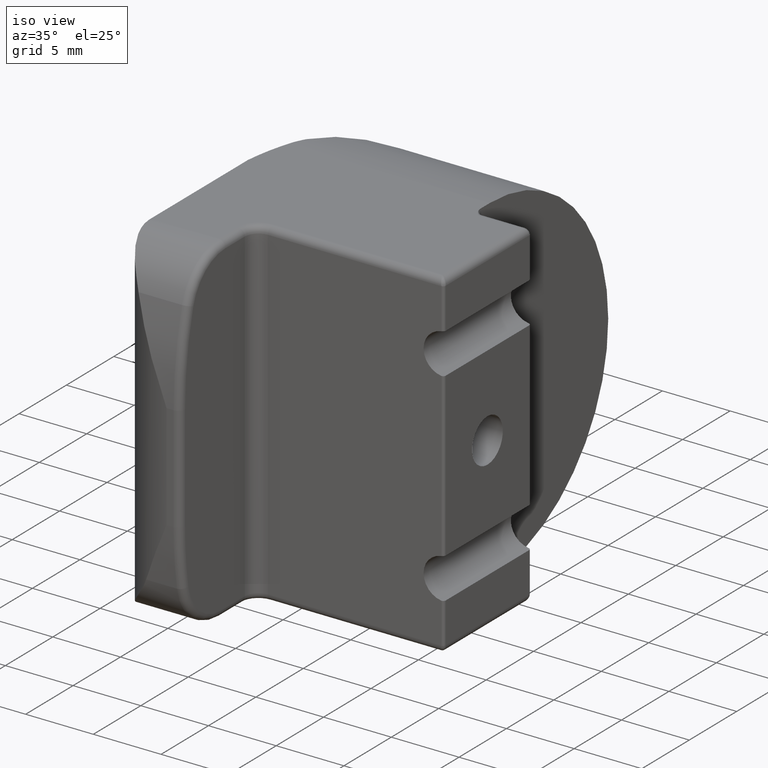
[diagram: clean part render]
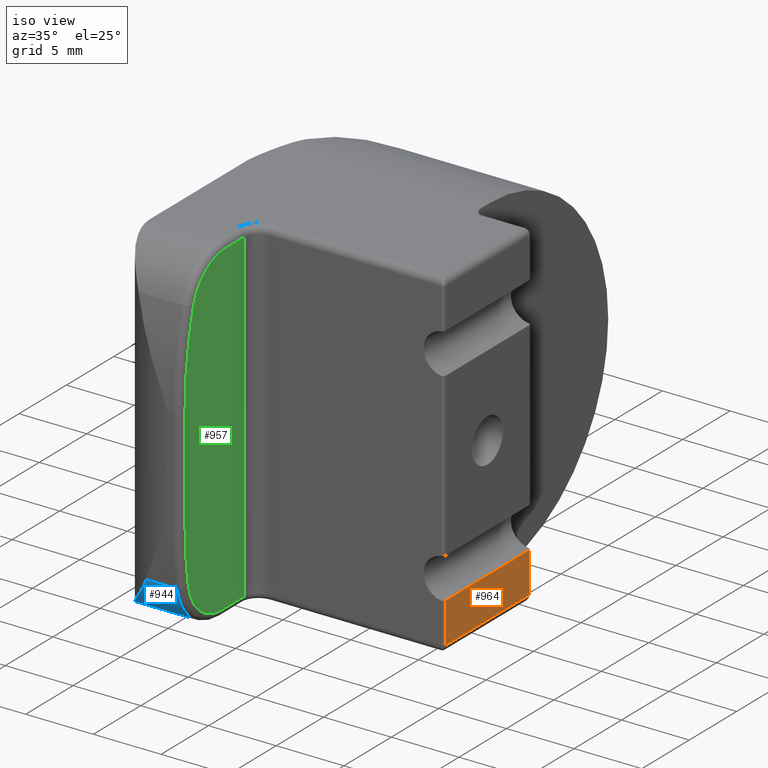
[diagram: same view with three faces highlighted in distinct colors, each labeled with its STEP entity id]
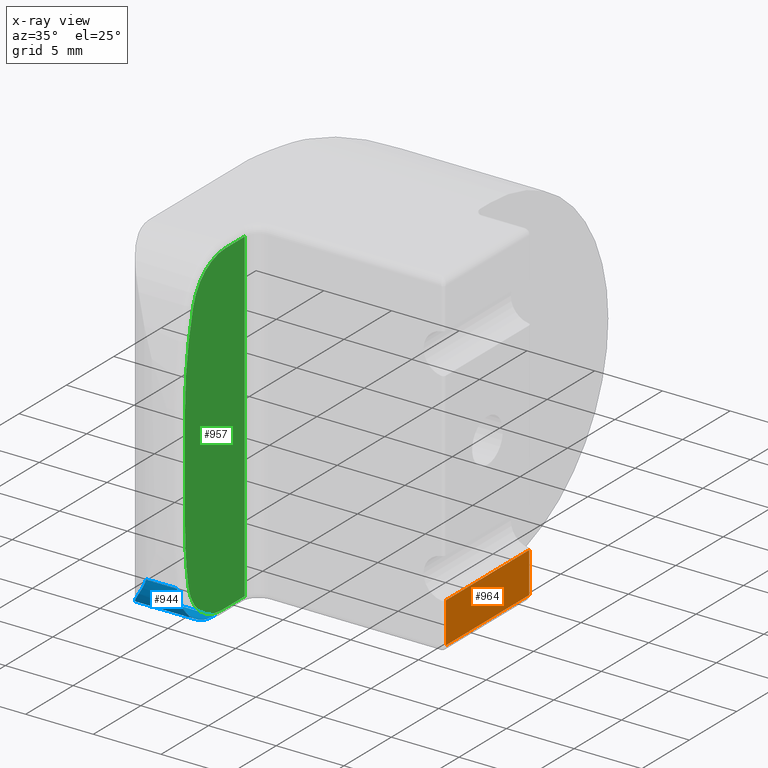
[diagram: x-ray of the same camera — body ghosted, the three highlighted faces saturated]
A machine part, iso view with three faces highlighted in distinct colors.
The next image is the same camera in x-ray (body ghosted, the three faces saturated) — at least one of them is partly hidden behind the body in this view.
Their STEP definitions:

[orange] entity #964 — the highlighted planar face has unit normal (1, 0, 0).
#43=PLANE('',#1094);
#56=LINE('',#1568,#125);
#102=LINE('',#1871,#171);
#109=LINE('',#1915,#178);
#111=LINE('',#1919,#180);
#125=VECTOR('',#1169,10.);
#171=VECTOR('',#1345,10.);
#178=VECTOR('',#1360,10.);
#180=VECTOR('',#1366,10.);
#260=FACE_OUTER_BOUND('',#318,.T.);
#318=EDGE_LOOP('',(#852,#853,#854,#855));
#414=VERTEX_POINT('',#1529);
#415=VERTEX_POINT('',#1557);
#477=VERTEX_POINT('',#1858);
#479=VERTEX_POINT('',#1870);
#512=EDGE_CURVE('',#415,#414,#56,.T.);
#606=EDGE_CURVE('',#479,#477,#102,.T.);
#617=EDGE_CURVE('',#414,#477,#109,.T.);
#619=EDGE_CURVE('',#415,#479,#111,.T.);
#852=ORIENTED_EDGE('',*,*,#512,.F.);
#853=ORIENTED_EDGE('',*,*,#619,.T.);
#854=ORIENTED_EDGE('',*,*,#606,.T.);
#855=ORIENTED_EDGE('',*,*,#617,.F.);
#964=ADVANCED_FACE('',(#260),#43,.T.);
#1094=AXIS2_PLACEMENT_3D('',#1918,#1364,#1365);
#1169=DIRECTION('',(2.52323414687533E-16,-1.,0.));
#1345=DIRECTION('',(3.04767104799062E-16,-1.,0.));
#1360=DIRECTION('',(0.,0.,1.));
#1364=DIRECTION('center_axis',(1.,2.52323414687533E-16,0.));
#1365=DIRECTION('ref_axis',(-2.52323414687533E-16,1.,0.));
#1366=DIRECTION('',(0.,0.,1.));
#1529=CARTESIAN_POINT('',(6.59999999999996,-4.4,-12.));
#1557=CARTESIAN_POINT('',(6.59999999999996,4.40000000000004,-12.));
#1568=CARTESIAN_POINT('',(6.59999999999996,-1.12413175827318,-12.));
#1858=CARTESIAN_POINT('',(6.59999999999996,-4.40000000000005,-9.));
#1870=CARTESIAN_POINT('',(6.59999999999996,4.40000000000005,-9.));
#1871=CARTESIAN_POINT('',(6.59999999999996,4.59999999999995,-9.));
#1915=CARTESIAN_POINT('',(6.59999999999996,-4.40000000000005,0.));
#1918=CARTESIAN_POINT('Origin',(6.59999999999996,-4.40000000000005,0.));
#1919=CARTESIAN_POINT('',(6.59999999999996,4.40000000000005,0.));

[blue] entity #944 — the highlighted cylindrical surface (partial cylindrical patch) has radius 3.9987 mm, axis along (-1, -0, 0).
#71=LINE('',#1640,#140);
#78=LINE('',#1656,#147);
#140=VECTOR('',#1256,10.);
#147=VECTOR('',#1267,10.);
#197=CYLINDRICAL_SURFACE('',#1061,3.99865565033502);
#240=FACE_OUTER_BOUND('',#298,.T.);
#298=EDGE_LOOP('',(#732,#733,#734,#735));
#335=B_SPLINE_CURVE_WITH_KNOTS('',3,(#1657,#1658,#1659,#1660,#1661,#1662,
#1663,#1664,#1665,#1666,#1667,#1668),.UNSPECIFIED.,.F.,.F.,(4,2,2,2,2,4),
(1.99693172868081,2.16231591827095,2.32770010786109,2.50809962357313,2.59829938142915,
2.61612736139914),.UNSPECIFIED.);
#369=CIRCLE('',#1034,3.99865565033502);
#423=VERTEX_POINT('',#1583);
#425=VERTEX_POINT('',#1589);
#438=VERTEX_POINT('',#1639);
#445=VERTEX_POINT('',#1655);
#523=EDGE_CURVE('',#425,#423,#369,.T.);
#549=EDGE_CURVE('',#438,#423,#71,.T.);
#557=EDGE_CURVE('',#425,#445,#78,.T.);
#558=EDGE_CURVE('',#438,#445,#335,.T.);
#732=ORIENTED_EDGE('',*,*,#523,.F.);
#733=ORIENTED_EDGE('',*,*,#557,.T.);
#734=ORIENTED_EDGE('',*,*,#558,.F.);
#735=ORIENTED_EDGE('',*,*,#549,.T.);
#944=ADVANCED_FACE('',(#240),#197,.T.);
#1034=AXIS2_PLACEMENT_3D('',#1591,#1194,#1195);
#1061=AXIS2_PLACEMENT_3D('',#1654,#1265,#1266);
#1194=DIRECTION('center_axis',(1.,3.26536183713277E-16,0.));
#1195=DIRECTION('ref_axis',(2.08236802886266E-16,-0.64522956779832,-0.763988746539367));
#1256=DIRECTION('',(1.,3.5527136788005E-16,0.));
#1265=DIRECTION('center_axis',(-1.,-3.5527136788005E-16,0.));
#1266=DIRECTION('ref_axis',(-3.50260711977325E-16,0.985896257464752,0.167357609677586));
#1267=DIRECTION('',(-1.,-3.5527136788005E-16,0.));
#1583=CARTESIAN_POINT('',(-7.90000000000004,-8.09999999999995,-12.5));
#1589=CARTESIAN_POINT('',(-7.90000000000004,-12.0422596405555,-9.17054980122882));
#1591=CARTESIAN_POINT('Origin',(-7.90000000000004,-8.09999999999995,-8.50134434966498));
#1639=CARTESIAN_POINT('',(-12.9125533459201,-8.09999999999996,-12.5));
#1640=CARTESIAN_POINT('',(-7.40000000000004,-8.09999999999995,-12.5));
#1654=CARTESIAN_POINT('Origin',(-7.40000000000004,-8.09999999999995,-8.50134434966498));
#1655=CARTESIAN_POINT('',(-10.1753188065998,-12.0422596405555,-9.17054980122882));
#1656=CARTESIAN_POINT('',(-7.40000000000004,-12.0422596405555,-9.17054980122882));
#1657=CARTESIAN_POINT('Ctrl Pts',(-12.9125533459201,-8.09999999999996,-12.5));
#1658=CARTESIAN_POINT('Ctrl Pts',(-12.8880519844994,-8.65073588812658,-12.5));
#1659=CARTESIAN_POINT('Ctrl Pts',(-12.7554966317385,-9.20950564342685,-12.3802159352546));
#1660=CARTESIAN_POINT('Ctrl Pts',(-12.3264674393478,-10.1920340639502,-11.9509877256426));
#1661=CARTESIAN_POINT('Ctrl Pts',(-12.0313732235108,-10.6169449031888,-11.6428047984827));
#1662=CARTESIAN_POINT('Ctrl Pts',(-11.4063284238076,-11.2980150782762,-10.9543444534629));
#1663=CARTESIAN_POINT('Ctrl Pts',(-11.0242896023309,-11.5884388894561,-10.5207743274317));
#1664=CARTESIAN_POINT('Ctrl Pts',(-10.5184140081302,-11.8839942076123,-9.81857147463014));
#1665=CARTESIAN_POINT('Ctrl Pts',(-10.3623659112775,-11.9599121019558,-9.57737994000854));
#1666=CARTESIAN_POINT('Ctrl Pts',(-10.2182220759944,-12.0238667167635,-9.27280685977918));
#1667=CARTESIAN_POINT('Ctrl Pts',(-10.1958956316896,-12.0335251280102,-9.22200442731848));
#1668=CARTESIAN_POINT('Ctrl Pts',(-10.1753188065997,-12.0422596405555,-9.17054980122882));

[green] entity #957 — the highlighted planar face has unit normal (1, 0, 0).
#40=PLANE('',#1085);
#60=LINE('',#1586,#129);
#62=LINE('',#1604,#131);
#64=LINE('',#1622,#133);
#99=LINE('',#1806,#168);
#129=VECTOR('',#1189,10.);
#131=VECTOR('',#1211,10.);
#133=VECTOR('',#1233,10.);
#168=VECTOR('',#1336,10.);
#253=FACE_OUTER_BOUND('',#311,.T.);
#311=EDGE_LOOP('',(#808,#809,#810,#811,#812,#813,#814,#815));
#370=CIRCLE('',#1035,3.49865565033502);
#373=CIRCLE('',#1039,24.8649241363034);
#377=CIRCLE('',#1045,24.8649241363035);
#380=CIRCLE('',#1049,3.49865565033502);
#420=VERTEX_POINT('',#1576);
#422=VERTEX_POINT('',#1582);
#424=VERTEX_POINT('',#1588);
#426=VERTEX_POINT('',#1594);
#428=VERTEX_POINT('',#1600);
#430=VERTEX_POINT('',#1606);
#432=VERTEX_POINT('',#1612);
#434=VERTEX_POINT('',#1618);
#521=EDGE_CURVE('',#420,#422,#60,.T.);
#524=EDGE_CURVE('',#422,#424,#370,.T.);
#527=EDGE_CURVE('',#424,#426,#373,.T.);
#530=EDGE_CURVE('',#426,#428,#62,.T.);
#533=EDGE_CURVE('',#428,#430,#377,.T.);
#536=EDGE_CURVE('',#430,#432,#380,.T.);
#539=EDGE_CURVE('',#432,#434,#64,.T.);
#597=EDGE_CURVE('',#420,#434,#99,.T.);
#808=ORIENTED_EDGE('',*,*,#521,.F.);
#809=ORIENTED_EDGE('',*,*,#597,.T.);
#810=ORIENTED_EDGE('',*,*,#539,.F.);
#811=ORIENTED_EDGE('',*,*,#536,.F.);
#812=ORIENTED_EDGE('',*,*,#533,.F.);
#813=ORIENTED_EDGE('',*,*,#530,.F.);
#814=ORIENTED_EDGE('',*,*,#527,.F.);
#815=ORIENTED_EDGE('',*,*,#524,.F.);
#957=ADVANCED_FACE('',(#253),#40,.T.);
#1035=AXIS2_PLACEMENT_3D('',#1592,#1196,#1197);
#1039=AXIS2_PLACEMENT_3D('',#1598,#1204,#1205);
#1045=AXIS2_PLACEMENT_3D('',#1610,#1218,#1219);
#1049=AXIS2_PLACEMENT_3D('',#1616,#1226,#1227);
#1085=AXIS2_PLACEMENT_3D('',#1805,#1334,#1335);
#1189=DIRECTION('',(3.26536183713277E-16,-1.,0.));
#1196=DIRECTION('center_axis',(-1.,-3.26536183713277E-16,0.));
#1197=DIRECTION('ref_axis',(2.1069080068783E-16,-0.64522956779832,-0.763988746539367));
#1204=DIRECTION('center_axis',(-1.,-3.26536183713277E-16,0.));
#1205=DIRECTION('ref_axis',(3.25382801173622E-16,-0.996467826240454,-0.0839754206159391));
#1211=DIRECTION('',(0.,0.,1.));
#1218=DIRECTION('center_axis',(-1.,-3.26536183713277E-16,0.));
#1219=DIRECTION('ref_axis',(3.23641624193761E-16,-0.991135562722025,0.132854417719901));
#1226=DIRECTION('center_axis',(-1.,-3.26536183713277E-16,0.));
#1227=DIRECTION('ref_axis',(1.98173640176219E-16,-0.606896417795556,0.794780937156221));
#1233=DIRECTION('',(-3.26536183713277E-16,1.,0.));
#1334=DIRECTION('center_axis',(1.,3.26536183713277E-16,0.));
#1335=DIRECTION('ref_axis',(-3.26536183713277E-16,1.,0.));
#1336=DIRECTION('',(0.,0.,1.));
#1576=CARTESIAN_POINT('',(-7.40000000000004,-5.59999999999996,-12.));
#1582=CARTESIAN_POINT('',(-7.40000000000004,-8.09999999999995,-12.));
#1586=CARTESIAN_POINT('',(-7.40000000000004,-5.12413175827319,-12.));
#1588=CARTESIAN_POINT('',(-7.40000000000004,-11.5493115118232,-9.08687099639003));
#1592=CARTESIAN_POINT('Origin',(-7.40000000000004,-8.09999999999995,-8.50134434966498));
#1594=CARTESIAN_POINT('',(-7.40000000000004,-11.9,-4.92553672812379));
#1598=CARTESIAN_POINT('Origin',(-7.40000000000005,12.9649241363034,-4.92553672812379));
#1600=CARTESIAN_POINT('',(-7.40000000000004,-11.9,2.87446327187621));
#1604=CARTESIAN_POINT('',(-7.40000000000004,-11.9,0.));
#1606=CARTESIAN_POINT('',(-7.40000000000004,-11.0222534426519,9.42272747697602));
#1610=CARTESIAN_POINT('Origin',(-7.40000000000005,12.9649241363034,2.87446327187621));
#1612=CARTESIAN_POINT('',(-7.40000000000004,-7.64710241013085,12.));
#1616=CARTESIAN_POINT('Origin',(-7.40000000000004,-7.64710241013085,8.50134434966498));
#1618=CARTESIAN_POINT('',(-7.40000000000004,-5.59999999999996,12.));
#1622=CARTESIAN_POINT('',(-7.40000000000004,-5.12413175827319,12.));
#1805=CARTESIAN_POINT('Origin',(-7.40000000000004,-12.4000000000001,0.));
#1806=CARTESIAN_POINT('',(-7.40000000000004,-5.59999999999996,0.));